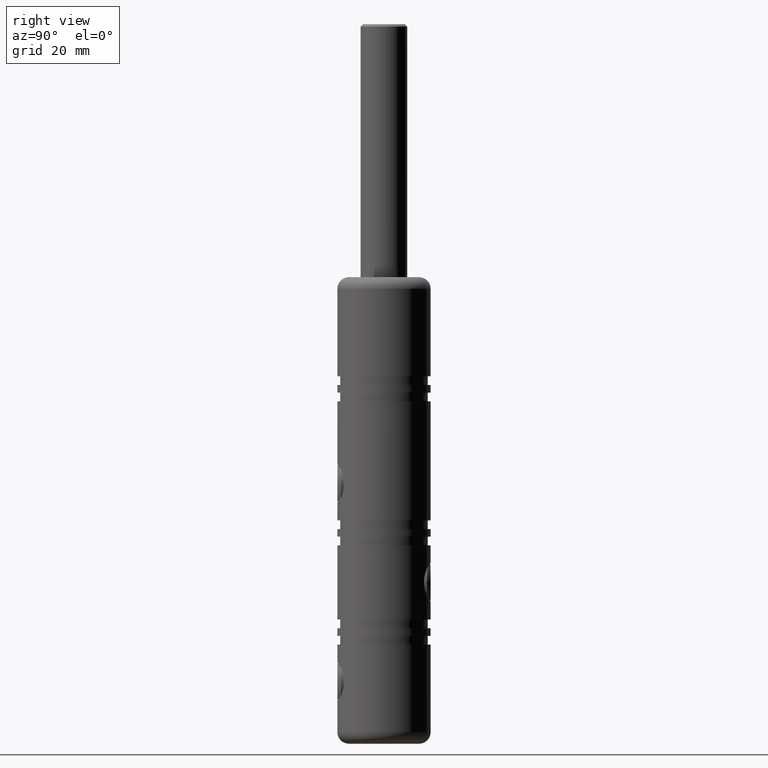
[diagram: clean part render]
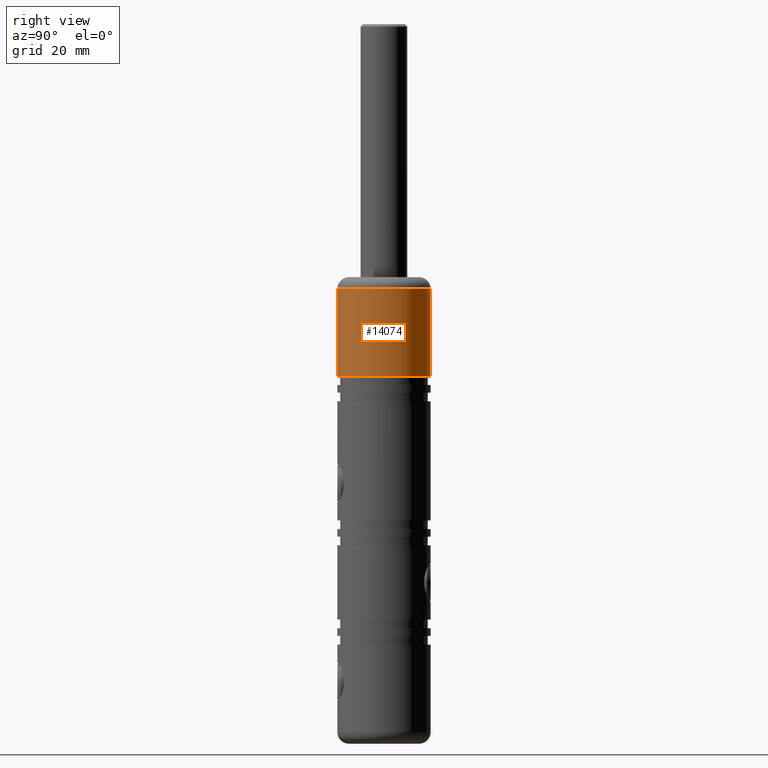
[diagram: same view with one face highlighted and labeled with its STEP entity id]
A machine part, right view. The second image highlights one B-rep face of the part: STEP entity #14074.
In plain terms, the highlighted cylindrical surface (partial cylindrical patch) has radius 8 mm, axis along (0, 0, 1).
Its self-contained STEP definition (entity closure, byte-faithful):
#719 = AXIS2_PLACEMENT_3D ( 'NONE', #13001, #10321, #16274 ) ;
#1219 = CARTESIAN_POINT ( 'NONE',  ( 9.797174393178813800E-016, 7.999999999999989300, 40.00000000000000000 ) ) ;
#2113 = VERTEX_POINT ( 'NONE', #9887 ) ;
#2208 = CARTESIAN_POINT ( 'NONE',  ( 0.0000000000000000000, -7.999999999999989300, 38.00000000000000000 ) ) ;
#2626 = CARTESIAN_POINT ( 'NONE',  ( 0.0000000000000000000, -7.999999999999983100, 23.00000000000000400 ) ) ;
#3333 = EDGE_LOOP ( 'NONE', ( #8535, #8396, #5711, #11739 ) ) ;
#3865 = LINE ( 'NONE', #1219, #5777 ) ;
#5613 = LINE ( 'NONE', #13050, #7053 ) ;
#5711 = ORIENTED_EDGE ( 'NONE', *, *, #12296, .T. ) ;
#5777 = VECTOR ( 'NONE', #16037, 1000.000000000000000 ) ;
#6208 = EDGE_CURVE ( 'NONE', #8814, #2113, #10205, .T. ) ;
#7053 = VECTOR ( 'NONE', #17454, 1000.000000000000000 ) ;
#7391 = DIRECTION ( 'NONE',  ( 0.0000000000000000000, -1.000000000000000000, 0.0000000000000000000 ) ) ;
#8396 = ORIENTED_EDGE ( 'NONE', *, *, #13276, .T. ) ;
#8535 = ORIENTED_EDGE ( 'NONE', *, *, #6208, .T. ) ;
#8814 = VERTEX_POINT ( 'NONE', #2626 ) ;
#8930 = AXIS2_PLACEMENT_3D ( 'NONE', #15327, #9864, #7391 ) ;
#9240 = CARTESIAN_POINT ( 'NONE',  ( 0.0000000000000000000, 0.0000000000000000000, 40.00000000000000000 ) ) ;
#9552 = CIRCLE ( 'NONE', #719, 7.999999999999989300 ) ;
#9864 = DIRECTION ( 'NONE',  ( -0.0000000000000000000, 5.922595424346115800E-017, 1.000000000000000000 ) ) ;
#9887 = CARTESIAN_POINT ( 'NONE',  ( 9.797174393178809900E-016, 7.999999999999979600, 23.00000000000000400 ) ) ;
#10205 = CIRCLE ( 'NONE', #8930, 7.999999999999981300 ) ;
#10321 = DIRECTION ( 'NONE',  ( 0.0000000000000000000, -5.922595424346115800E-017, -1.000000000000000000 ) ) ;
#10723 = EDGE_CURVE ( 'NONE', #8814, #13195, #5613, .T. ) ;
#11107 = FACE_OUTER_BOUND ( 'NONE', #3333, .T. ) ;
#11739 = ORIENTED_EDGE ( 'NONE', *, *, #10723, .F. ) ;
#11936 = DIRECTION ( 'NONE',  ( 0.0000000000000000000, -1.000000000000000000, 0.0000000000000000000 ) ) ;
#12257 = VERTEX_POINT ( 'NONE', #14353 ) ;
#12296 = EDGE_CURVE ( 'NONE', #12257, #13195, #9552, .T. ) ;
#13001 = CARTESIAN_POINT ( 'NONE',  ( 0.0000000000000000000, -1.184519084869224400E-016, 38.00000000000000000 ) ) ;
#13050 = CARTESIAN_POINT ( 'NONE',  ( 0.0000000000000000000, -7.999999999999989300, 40.00000000000000000 ) ) ;
#13195 = VERTEX_POINT ( 'NONE', #2208 ) ;
#13276 = EDGE_CURVE ( 'NONE', #2113, #12257, #3865, .T. ) ;
#13856 = CYLINDRICAL_SURFACE ( 'NONE', #15769, 7.999999999999989300 ) ;
#14074 = ADVANCED_FACE ( 'NONE', ( #11107 ), #13856, .T. ) ;
#14353 = CARTESIAN_POINT ( 'NONE',  ( 9.797174393178813800E-016, 7.999999999999989300, 38.00000000000000000 ) ) ;
#15327 = CARTESIAN_POINT ( 'NONE',  ( 0.0000000000000000000, -1.006841222138839500E-015, 23.00000000000000400 ) ) ;
#15769 = AXIS2_PLACEMENT_3D ( 'NONE', #9240, #17300, #11936 ) ;
#16037 = DIRECTION ( 'NONE',  ( -0.0000000000000000000, 5.922595424346115800E-017, 1.000000000000000000 ) ) ;
#16274 = DIRECTION ( 'NONE',  ( 0.0000000000000000000, 1.000000000000000000, 0.0000000000000000000 ) ) ;
#17300 = DIRECTION ( 'NONE',  ( -0.0000000000000000000, 5.922595424346115800E-017, 1.000000000000000000 ) ) ;
#17454 = DIRECTION ( 'NONE',  ( -0.0000000000000000000, 5.922595424346115800E-017, 1.000000000000000000 ) ) ;